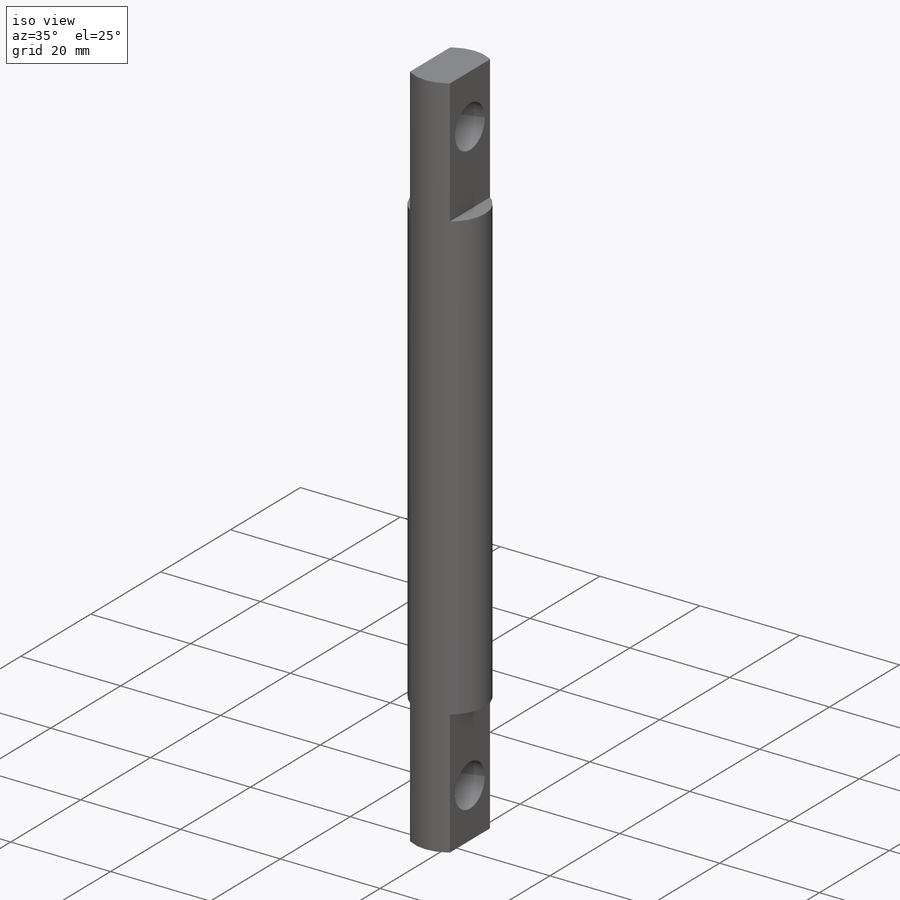
[diagram: iso view]
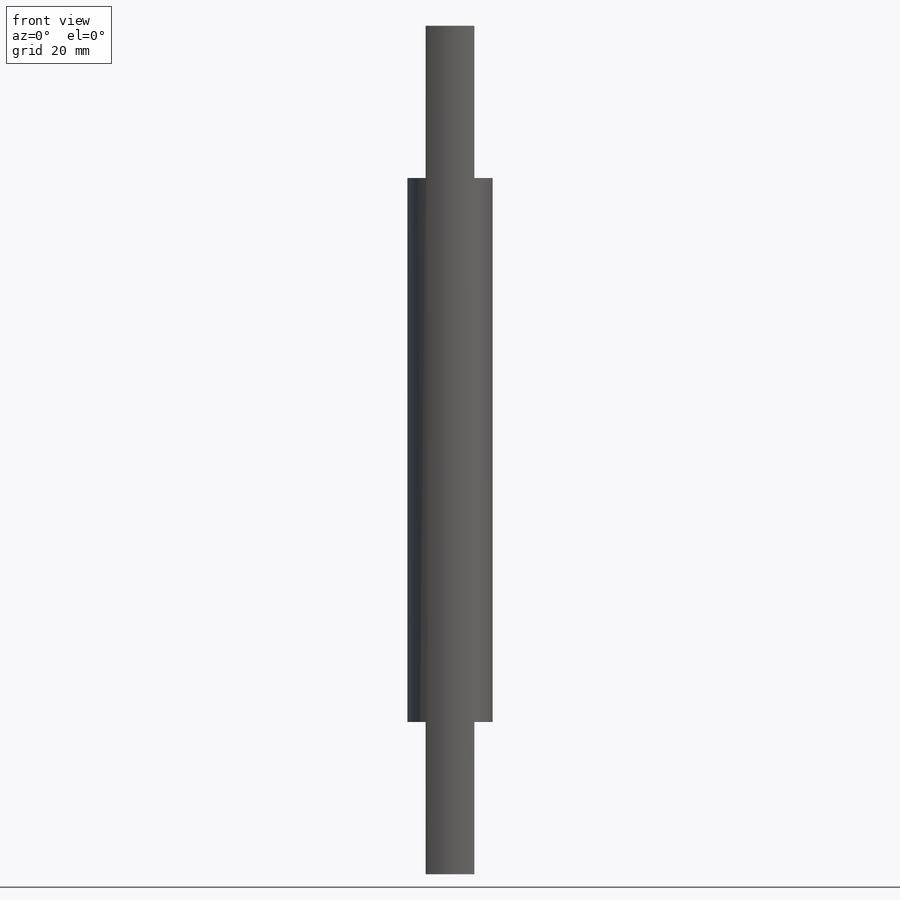
[diagram: front view]
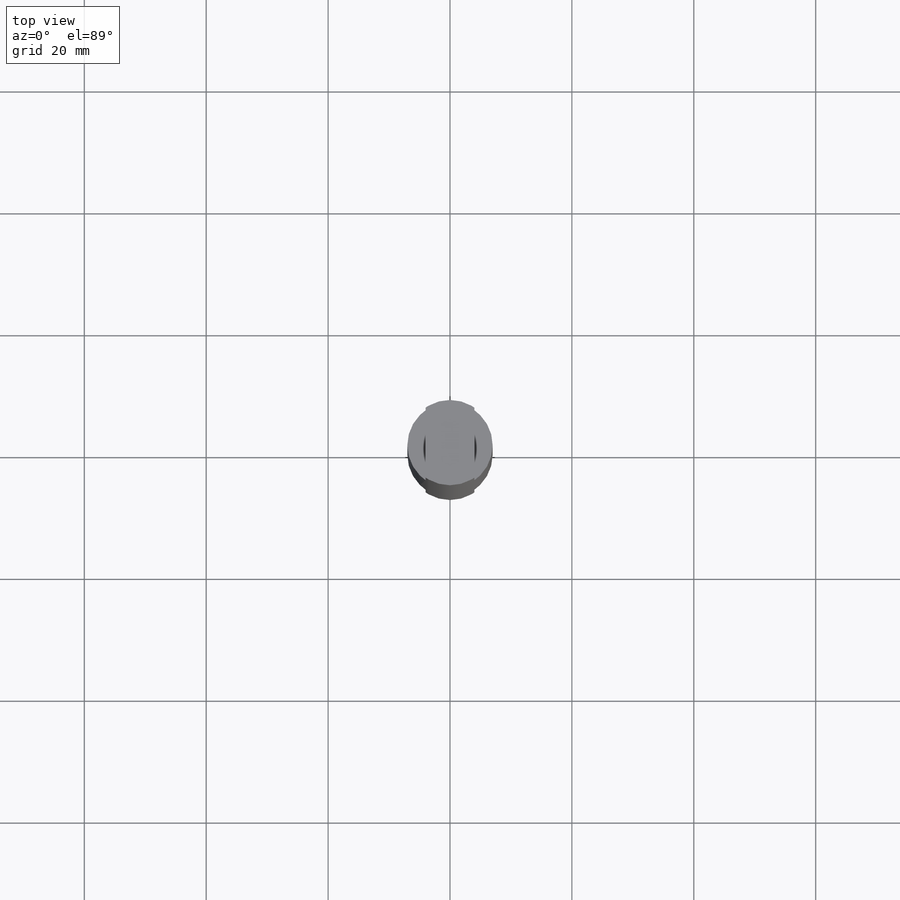
[diagram: top view]
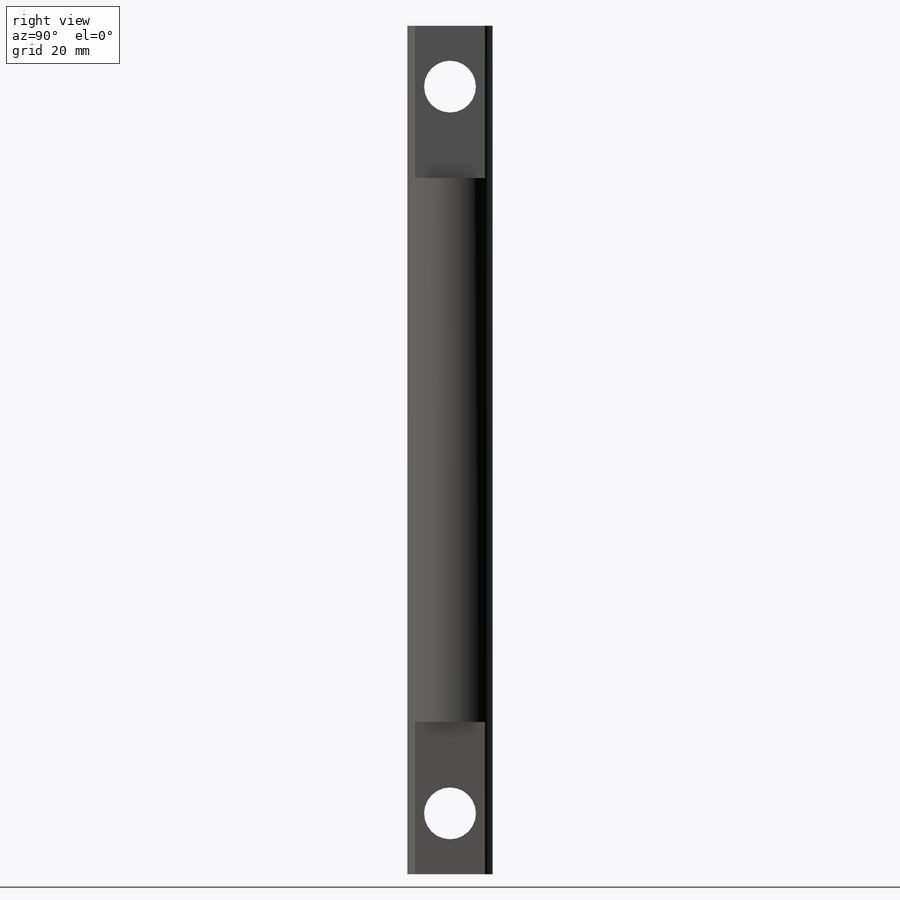
[diagram: right view]
SOLIDWORKS PART (.sldprt)
format: sldprt  version: not decoded by parser v0  size: 169,984 bytes
history: native  units: mm
features: sketch x6, cut_extrude x2, material x1, extrude x1, hole x1 (+12 scaffold rows collapsed)
feature tree (23):
  scaffold x12  (default folders/planes/origin — collapsed)
  material  "Material <not specified>"
  sketch  "Sketch1"  dims[D1=14.0mm]
  extrude  "Boss-Extrude1"  Depth=139.254mm
  sketch  "Sketch3"  dims[D1=4.0mm D2=4.0mm]
  cut_extrude  "Cut-Extrude1"  Depth=25mm
  sketch  "Sketch4"  dims[D1=4.0mm D2=4.0mm]
  cut_extrude  "Cut-Extrude2"  Depth=25mm
  sketch  "Sketch5"  dims[D1=10.0mm D2=10.0mm]
  hole  "Tap Drill for M10x1.5 Tap1"  Diameter=8.5mm Depth=20mm
  sketch  "Sketch7"  dims[D1=12.0mm]
  sketch  "Sketch6"  dims[hole-wizard template sketch: 50 standard entries collapsed; hole parameters above]
decode coverage: 10 of 10 modeling features carry decoded parameters
note: ~ marks probable driven/reference dimensions
note: suppression state not decoded; provenance and decode notes live in map.json
